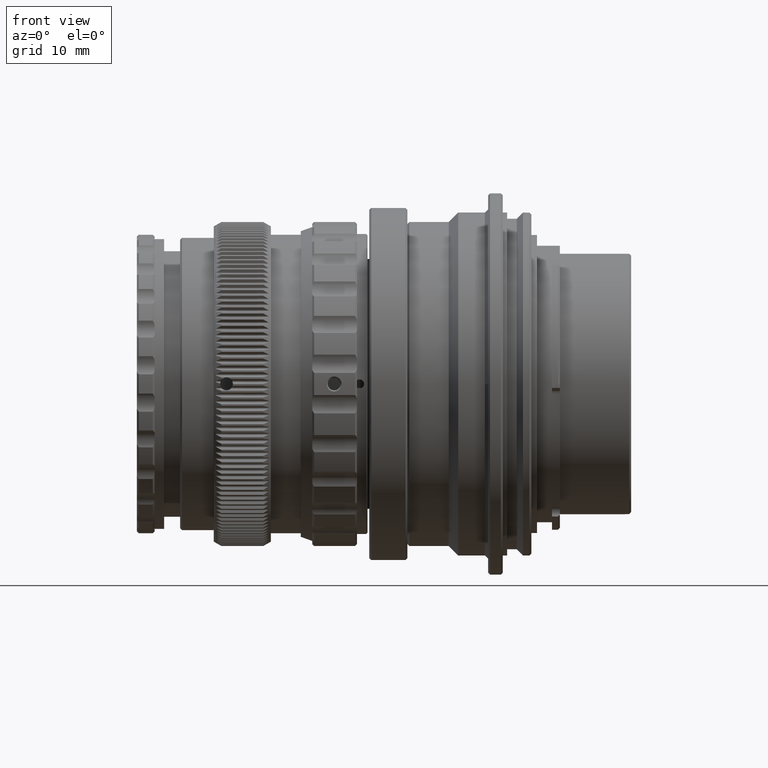
[diagram: clean part render]
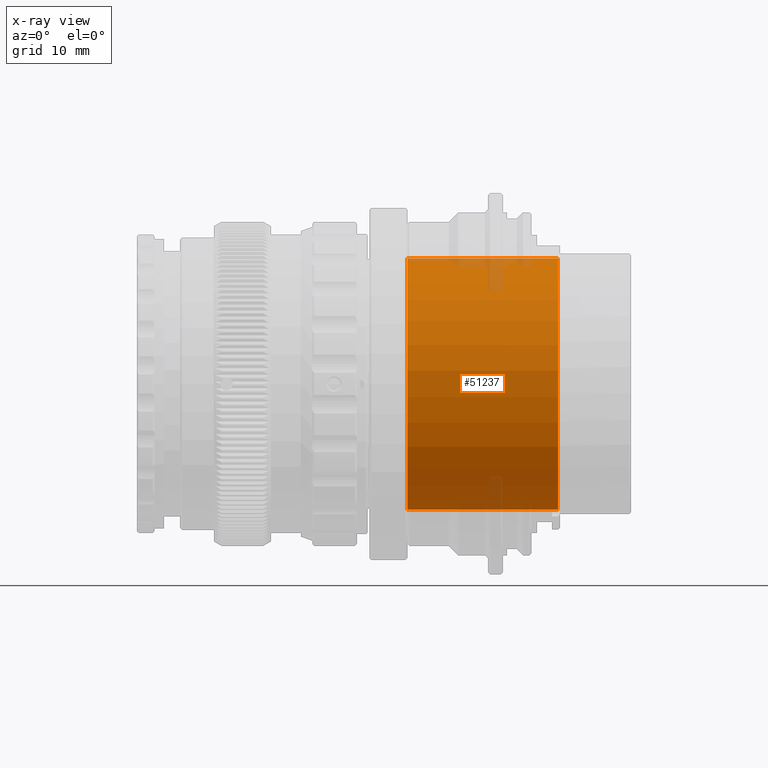
[diagram: x-ray — body ghosted, one internal face saturated and labeled with its STEP entity id]
A machine part, front view, then the same camera in x-ray: the body is ghosted and one INTERNAL B-rep face — a face not visible from any outside direction — is saturated and labeled: STEP entity #51237.
In plain terms, the highlighted cylindrical surface (partial cylindrical patch) has radius 19.75 mm, axis along (-1, -0, -0).
Its self-contained STEP definition (entity closure, byte-faithful):
#1600 = VECTOR ( 'NONE', #21881, 1000.000000000000000 ) ;
#3835 = EDGE_CURVE ( 'NONE', #34711, #29906, #41598, .T. ) ;
#4094 = DIRECTION ( 'NONE',  ( 1.000000000000000000, 0.0000000000000000000, 0.0000000000000000000 ) ) ;
#6319 = ORIENTED_EDGE ( 'NONE', *, *, #13563, .F. ) ;
#8419 = CIRCLE ( 'NONE', #55017, 19.74999999999999600 ) ;
#10928 = CARTESIAN_POINT ( 'NONE',  ( 0.0000000000000000000, 0.0000000000000000000, 0.0000000000000000000 ) ) ;
#13563 = EDGE_CURVE ( 'NONE', #35688, #34711, #8419, .T. ) ;
#14819 = CARTESIAN_POINT ( 'NONE',  ( 4.199999999999995700, 0.0000000000000000000, -19.74999999999999600 ) ) ;
#15626 = AXIS2_PLACEMENT_3D ( 'NONE', #31760, #4094, #45729 ) ;
#21445 = DIRECTION ( 'NONE',  ( 0.0000000000000000000, 0.0000000000000000000, 1.000000000000000000 ) ) ;
#21881 = DIRECTION ( 'NONE',  ( -1.000000000000000000, -0.0000000000000000000, -0.0000000000000000000 ) ) ;
#22507 = VERTEX_POINT ( 'NONE', #59714 ) ;
#26200 = EDGE_CURVE ( 'NONE', #29906, #22507, #53157, .T. ) ;
#28461 = FACE_OUTER_BOUND ( 'NONE', #43279, .T. ) ;
#29496 = DIRECTION ( 'NONE',  ( 0.0000000000000000000, 0.0000000000000000000, 1.000000000000000000 ) ) ;
#29906 = VERTEX_POINT ( 'NONE', #30179 ) ;
#30179 = CARTESIAN_POINT ( 'NONE',  ( -19.50000000000000000, 0.0000000000000000000, 19.74999999999999600 ) ) ;
#30784 = DIRECTION ( 'NONE',  ( -1.000000000000000000, -0.0000000000000000000, -0.0000000000000000000 ) ) ;
#30937 = DIRECTION ( 'NONE',  ( -1.000000000000000000, -0.0000000000000000000, -0.0000000000000000000 ) ) ;
#31760 = CARTESIAN_POINT ( 'NONE',  ( -19.50000000000000000, 0.0000000000000000000, 0.0000000000000000000 ) ) ;
#33583 = CARTESIAN_POINT ( 'NONE',  ( 4.199999999999995700, 2.437047130303233200E-015, 19.74999999999999600 ) ) ;
#34711 = VERTEX_POINT ( 'NONE', #33583 ) ;
#35529 = LINE ( 'NONE', #44735, #1600 ) ;
#35688 = VERTEX_POINT ( 'NONE', #14819 ) ;
#37652 = ORIENTED_EDGE ( 'NONE', *, *, #26200, .F. ) ;
#37849 = CYLINDRICAL_SURFACE ( 'NONE', #49431, 19.74999999999999600 ) ;
#40177 = CARTESIAN_POINT ( 'NONE',  ( 0.0000000000000000000, 0.0000000000000000000, 19.74999999999999600 ) ) ;
#41598 = LINE ( 'NONE', #40177, #52401 ) ;
#42639 = ORIENTED_EDGE ( 'NONE', *, *, #52456, .T. ) ;
#43279 = EDGE_LOOP ( 'NONE', ( #6319, #42639, #37652, #52241 ) ) ;
#44735 = CARTESIAN_POINT ( 'NONE',  ( 0.0000000000000000000, 2.418677428316022300E-015, -19.74999999999999600 ) ) ;
#45729 = DIRECTION ( 'NONE',  ( 0.0000000000000000000, 0.0000000000000000000, 1.000000000000000000 ) ) ;
#49431 = AXIS2_PLACEMENT_3D ( 'NONE', #10928, #57548, #29496 ) ;
#51237 = ADVANCED_FACE ( 'NONE', ( #28461 ), #37849, .F. ) ;
#52241 = ORIENTED_EDGE ( 'NONE', *, *, #3835, .F. ) ;
#52401 = VECTOR ( 'NONE', #30784, 1000.000000000000000 ) ;
#52456 = EDGE_CURVE ( 'NONE', #35688, #22507, #35529, .T. ) ;
#53157 = CIRCLE ( 'NONE', #15626, 19.74999999999999600 ) ;
#55017 = AXIS2_PLACEMENT_3D ( 'NONE', #58605, #30937, #21445 ) ;
#57548 = DIRECTION ( 'NONE',  ( -1.000000000000000000, -0.0000000000000000000, -0.0000000000000000000 ) ) ;
#58605 = CARTESIAN_POINT ( 'NONE',  ( 4.199999999999995700, 0.0000000000000000000, 0.0000000000000000000 ) ) ;
#59714 = CARTESIAN_POINT ( 'NONE',  ( -19.50000000000000000, 2.418677428316022300E-015, -19.74999999999999600 ) ) ;